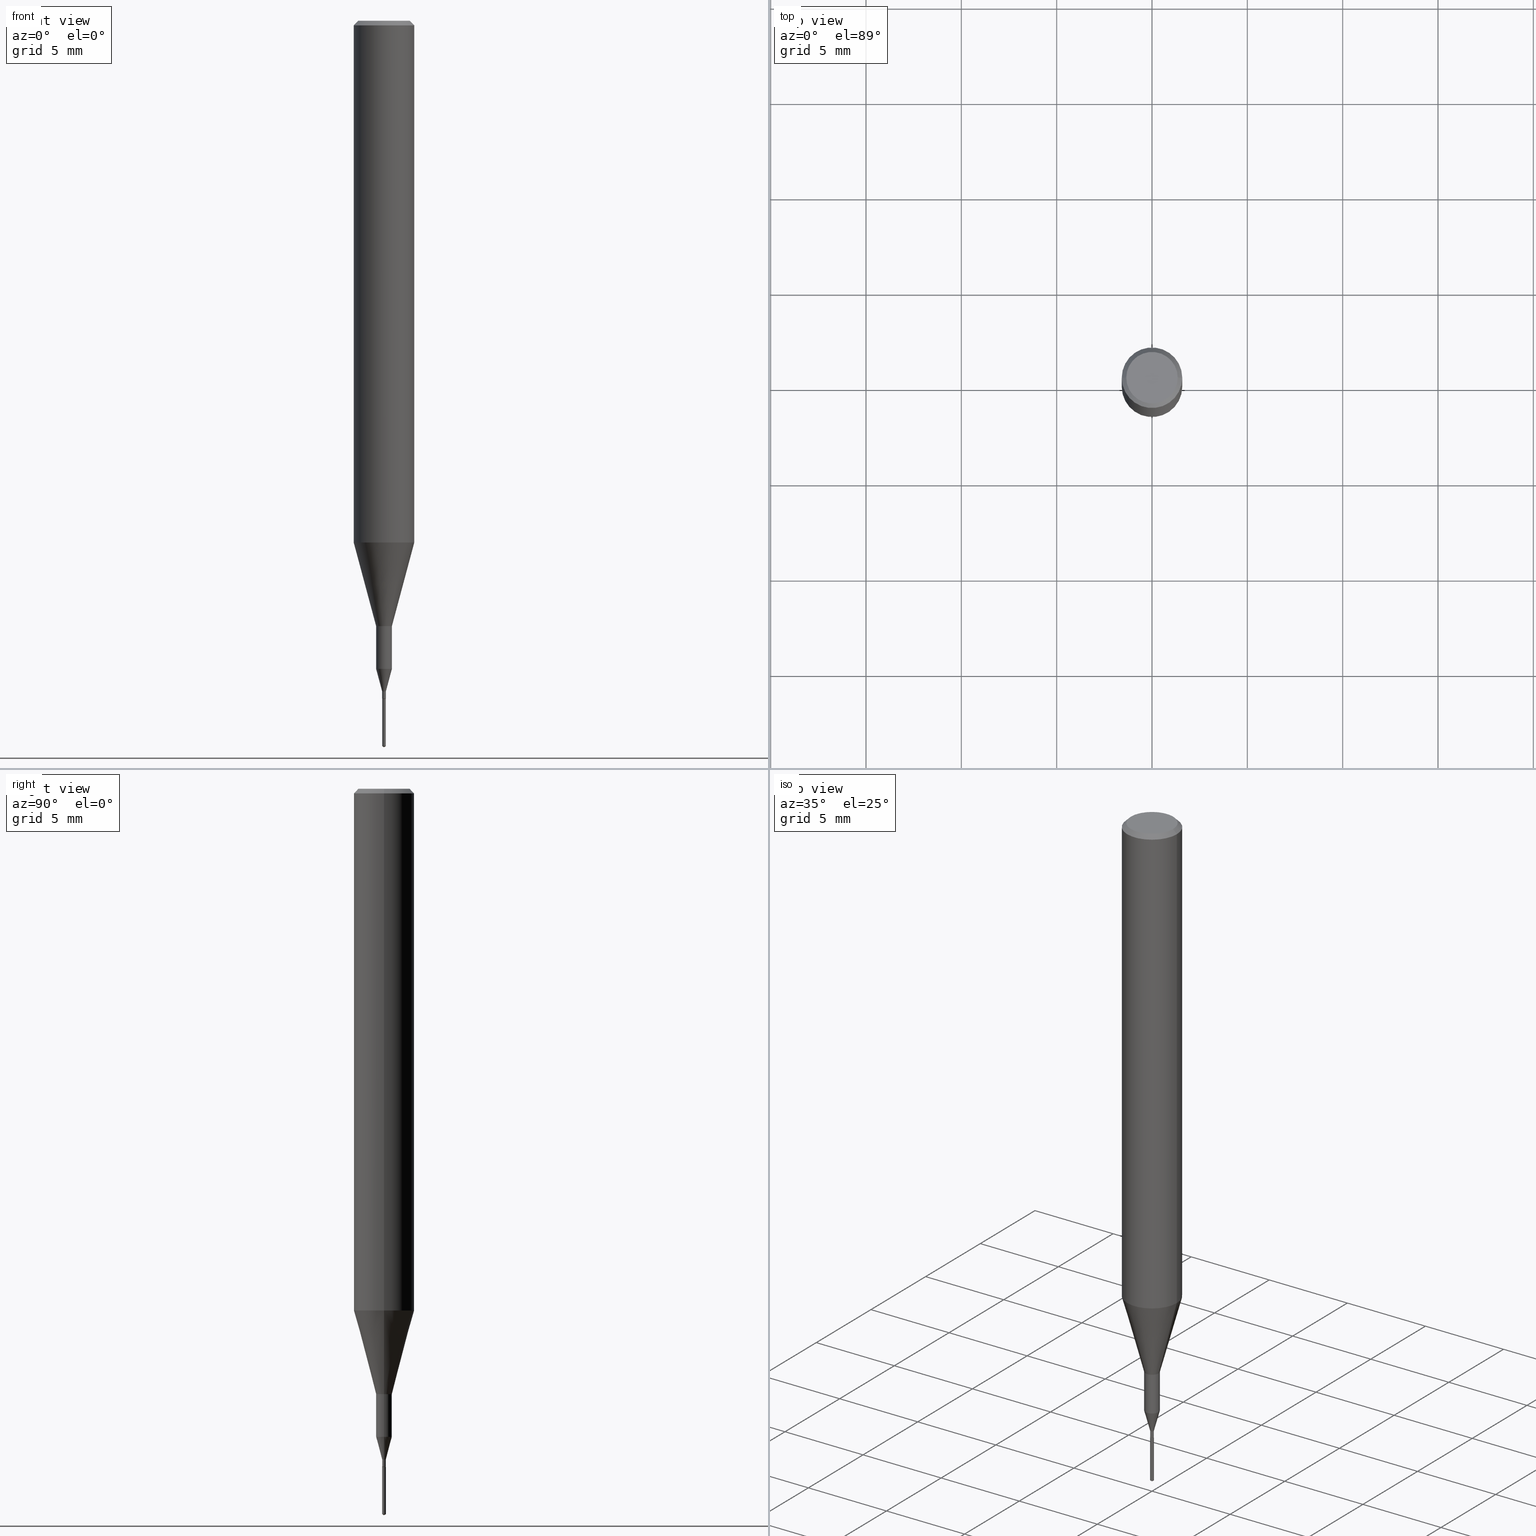
[diagram: canonical four-view strip — front | top / right | iso, engineering-drawing reading convention]
A machine part, canonical four-view strip (front | top / right | iso — engineering-drawing reading convention). The complete STEP part file that produces these views, byte-faithful:
ISO-10303-21;
HEADER;
FILE_DESCRIPTION (( 'STEP AP203' ),
    '1' );
FILE_NAME ('07244.STEP',
    '2024-04-19T13:30:17',
    ( '' ),
    ( '' ),
    'SwSTEP 2.0',
    'SolidWorks 2023',
    '' );
FILE_SCHEMA (( 'CONFIG_CONTROL_DESIGN' ));
ENDSEC;

DATA;
#1 = CARTESIAN_POINT ( 'NONE',  ( 2.634730117954813298E-29, -3.761696332605275695E-15, -1.077392650149939346 ) ) ;
#2 = EDGE_LOOP ( 'NONE', ( #553, #140, #500, #526 ) ) ;
#3 = CARTESIAN_POINT ( 'NONE',  ( 0.003750000000000005933, -4.912514243752306680E-15, -1.399500000000000188 ) ) ;
#4 = DIRECTION ( 'NONE',  ( -2.445468806185136597E-29, 3.491481338843145583E-15, 1.000000000000000000 ) ) ;
#5 = CIRCLE ( 'NONE', #491, 0.003750000000000005933 ) ;
#6 = AXIS2_PLACEMENT_3D ( 'NONE', #267, #35, #221 ) ;
#7 = ORIENTED_EDGE ( 'NONE', *, *, #198, .F. ) ;
#8 = EDGE_CURVE ( 'NONE', #571, #187, #199, .T. ) ;
#9 = DESIGN_CONTEXT ( 'detailed design', #441, 'design' ) ;
#10 = ORIENTED_EDGE ( 'NONE', *, *, #151, .T. ) ;
#11 = CARTESIAN_POINT ( 'NONE',  ( -2.618611004128685449E-17, -0.003750000000005227017, -1.497746772678646865 ) ) ;
#12 = EDGE_CURVE ( 'NONE', #282, #559, #17, .T. ) ;
#13 = ORIENTED_EDGE ( 'NONE', *, *, #114, .F. ) ;
#14 = DIRECTION ( 'NONE',  ( 1.000000000000000000, -6.982962677686266711E-15, 0.000000000000000000 ) ) ;
#15 = DIRECTION ( 'NONE',  ( 1.000000000000000000, -6.982962677686266711E-15, 4.875930095424100059E-29 ) ) ;
#16 = AXIS2_PLACEMENT_3D ( 'NONE', #403, #186, #369 ) ;
#17 = CIRCLE ( 'NONE', #92, 0.06250000000000012490 ) ;
#18 = FACE_OUTER_BOUND ( 'NONE', #333, .T. ) ;
#19 =( GEOMETRIC_REPRESENTATION_CONTEXT ( 3 ) GLOBAL_UNCERTAINTY_ASSIGNED_CONTEXT ( ( #30 ) ) GLOBAL_UNIT_ASSIGNED_CONTEXT ( ( #229, #132, #398 ) ) REPRESENTATION_CONTEXT ( 'NONE', 'WORKASPACE' ) );
#20 = EDGE_LOOP ( 'NONE', ( #133, #345, #22, #68 ) ) ;
#21 = PLANE ( 'NONE',  #285 ) ;
#22 = ORIENTED_EDGE ( 'NONE', *, *, #290, .F. ) ;
#23 = PERSON_AND_ORGANIZATION ( #167, #118 ) ;
#24 = EDGE_LOOP ( 'NONE', ( #461, #426, #519, #204 ) ) ;
#25 = PRODUCT ( '07244', '07244', '', ( #508 ) ) ;
#26 = EDGE_CURVE ( 'NONE', #385, #110, #428, .T. ) ;
#27 = ORIENTED_EDGE ( 'NONE', *, *, #532, .T. ) ;
#28 = DIRECTION ( 'NONE',  ( 2.445468806185136597E-29, -3.491481338843145583E-15, -1.000000000000000000 ) ) ;
#29 = CC_DESIGN_PERSON_AND_ORGANIZATION_ASSIGNMENT ( #576, #170, ( #484 ) ) ;
#30 = UNCERTAINTY_MEASURE_WITH_UNIT (LENGTH_MEASURE( 1.000000000000000082E-05 ), #229, 'distance_accuracy_value', 'NONE');
#31 = CARTESIAN_POINT ( 'NONE',  ( 0.003250000000000000284, -4.910768503082885176E-15, -1.400000000000000355 ) ) ;
#32 = EDGE_CURVE ( 'NONE', #343, #286, #312, .T. ) ;
#33 = LOCAL_TIME ( 9, 30, 17.00000000000000000, #406 ) ;
#34 = AXIS2_PLACEMENT_3D ( 'NONE', #490, #219, #97 ) ;
#35 = DIRECTION ( 'NONE',  ( -2.445468806185136597E-29, 3.491481338843145583E-15, 1.000000000000000000 ) ) ;
#36 = CARTESIAN_POINT ( 'NONE',  ( -0.01624999999999999709, -4.403123558425820763E-15, -1.250000000000000000 ) ) ;
#37 = CARTESIAN_POINT ( 'NONE',  ( 3.422433594256099443E-29, -4.886328133710982549E-15, -1.399500000000000188 ) ) ;
#38 = VECTOR ( 'NONE', #230, 39.37007874015748143 ) ;
#39 = CARTESIAN_POINT ( 'NONE',  ( 0.01625000000000000056, -4.786294975932144680E-15, -1.338349364905389249 ) ) ;
#40 = LINE ( 'NONE', #227, #38 ) ;
#41 = APPROVAL_STATUS ( 'not_yet_approved' ) ;
#42 = LENGTH_MEASURE_WITH_UNIT ( LENGTH_MEASURE( 0.02539999999999999897 ), #588 );
#43 = DIRECTION ( 'NONE',  ( -2.445468806185136597E-29, 3.491481338843145583E-15, 1.000000000000000000 ) ) ;
#44 = EDGE_CURVE ( 'NONE', #238, #115, #5, .T. ) ;
#45 = FACE_OUTER_BOUND ( 'NONE', #74, .T. ) ;
#46 = VECTOR ( 'NONE', #542, 39.37007874015748854 ) ;
#47 = EDGE_CURVE ( 'NONE', #571, #110, #355, .T. ) ;
#48 = DIRECTION ( 'NONE',  ( -6.982962677686265133E-15, -1.000000000000000000, 3.468864327941532683E-15 ) ) ;
#49 = AXIS2_PLACEMENT_3D ( 'NONE', #87, #125, #272 ) ;
#50 = EDGE_LOOP ( 'NONE', ( #149, #589, #193, #378 ) ) ;
#51 = CYLINDRICAL_SURFACE ( 'NONE', #73, 0.01624999999999999709 ) ;
#52 = CC_DESIGN_SECURITY_CLASSIFICATION ( #577, ( #484 ) ) ;
#53 = DIRECTION ( 'NONE',  ( -2.445468806185136597E-29, 3.491481338843145583E-15, 1.000000000000000000 ) ) ;
#54 = ORIENTED_EDGE ( 'NONE', *, *, #449, .F. ) ;
#55 = VECTOR ( 'NONE', #70, 39.37007874015748143 ) ;
#56 = DIRECTION ( 'NONE',  ( 0.7071067811865453523, -7.319954787623248157E-15, -0.7071067811865496822 ) ) ;
#57 = EDGE_CURVE ( 'NONE', #105, #573, #138, .T. ) ;
#58 = CC_DESIGN_APPROVAL ( #304, ( #577 ) ) ;
#59 = CARTESIAN_POINT ( 'NONE',  ( -0.003250000000000000284, -4.864981235468201762E-15, -1.400000000000000355 ) ) ;
#60 = CARTESIAN_POINT ( 'NONE',  ( 0.000000000000000000, 0.000000000000000000, 0.000000000000000000 ) ) ;
#61 = ORIENTED_EDGE ( 'NONE', *, *, #527, .T. ) ;
#62 = CIRCLE ( 'NONE', #148, 0.01624999999999999709 ) ;
#63 = LINE ( 'NONE', #245, #55 ) ;
#64 = ORIENTED_EDGE ( 'NONE', *, *, #472, .F. ) ;
#65 = AXIS2_PLACEMENT_3D ( 'NONE', #413, #232, #548 ) ;
#66 = ORIENTED_EDGE ( 'NONE', *, *, #57, .F. ) ;
#67 = CARTESIAN_POINT ( 'NONE',  ( 3.423656328659192244E-29, -4.888073874380404841E-15, -1.400000000000000355 ) ) ;
#68 = ORIENTED_EDGE ( 'NONE', *, *, #493, .F. ) ;
#69 = VECTOR ( 'NONE', #266, 39.37007874015748143 ) ;
#70 = DIRECTION ( 'NONE',  ( -2.452008562004351188E-29, 3.482116036290244915E-15, 1.000000000000000000 ) ) ;
#71 = ORIENTED_EDGE ( 'NONE', *, *, #198, .T. ) ;
#72 = CARTESIAN_POINT ( 'NONE',  ( 0.06250000000000000000, -4.691678049070464390E-16, -0.009375000000000067307 ) ) ;
#73 = AXIS2_PLACEMENT_3D ( 'NONE', #357, #85, #501 ) ;
#74 = EDGE_LOOP ( 'NONE', ( #247, #71, #380, #113 ) ) ;
#75 = EDGE_CURVE ( 'NONE', #473, #481, #421, .T. ) ;
#76 = ORIENTED_EDGE ( 'NONE', *, *, #57, .T. ) ;
#77 = COORDINATED_UNIVERSAL_TIME_OFFSET ( 5, 0, .BEHIND. ) ;
#78 = VERTEX_POINT ( 'NONE', #31 ) ;
#79 = CIRCLE ( 'NONE', #455, 0.003749999999999998994 ) ;
#80 = CARTESIAN_POINT ( 'NONE',  ( 3.423656328659191123E-29, -4.888073874380404052E-15, -1.400000000000000133 ) ) ;
#81 = AXIS2_PLACEMENT_3D ( 'NONE', #106, #103, #155 ) ;
#82 = DIRECTION ( 'NONE',  ( -2.445468806185136597E-29, 3.491481338843145583E-15, 1.000000000000000000 ) ) ;
#83 = DIRECTION ( 'NONE',  ( 1.000000000000000000, -6.982962677686258033E-15, 0.000000000000000000 ) ) ;
#84 = DIRECTION ( 'NONE',  ( 1.000000000000000000, -6.982962677686264344E-15, 0.000000000000000000 ) ) ;
#85 = DIRECTION ( 'NONE',  ( -2.445468806185136597E-29, 3.491481338843145583E-15, 1.000000000000000000 ) ) ;
#86 = DIRECTION ( 'NONE',  ( -2.445468806185136877E-29, 3.491481338843145188E-15, 1.000000000000000000 ) ) ;
#87 = CARTESIAN_POINT ( 'NONE',  ( 0.000000000000000000, 0.000000000000000000, 0.000000000000000000 ) ) ;
#88 = ADVANCED_FACE ( 'NONE', ( #359 ), #315, .T. ) ;
#89 = VECTOR ( 'NONE', #366, 39.37007874015747433 ) ;
#90 = FACE_OUTER_BOUND ( 'NONE', #166, .T. ) ;
#91 = PERSON_AND_ORGANIZATION_ROLE ( 'classification_officer' ) ;
#92 = AXIS2_PLACEMENT_3D ( 'NONE', #200, #156, #340 ) ;
#93 = CARTESIAN_POINT ( 'NONE',  ( 3.386974296566414366E-29, -4.835701654297756579E-15, -1.385000000000000009 ) ) ;
#94 = ORIENTED_EDGE ( 'NONE', *, *, #75, .T. ) ;
#95 = CARTESIAN_POINT ( 'NONE',  ( 0.003750000000000130833, -4.861887764339080710E-15, -1.385000000000000009 ) ) ;
#96 = AXIS2_PLACEMENT_3D ( 'NONE', #546, #458, #411 ) ;
#97 = DIRECTION ( 'NONE',  ( -6.982962677686265922E-15, -1.000000000000000000, 0.000000000000000000 ) ) ;
#98 = FACE_OUTER_BOUND ( 'NONE', #569, .T. ) ;
#99 = EDGE_CURVE ( 'NONE', #504, #389, #213, .T. ) ;
#100 = ORIENTED_EDGE ( 'NONE', *, *, #47, .F. ) ;
#101 = DIRECTION ( 'NONE',  ( -2.445468806185136597E-29, 3.491481338843145583E-15, 1.000000000000000000 ) ) ;
#102 = ORIENTED_EDGE ( 'NONE', *, *, #32, .T. ) ;
#103 = DIRECTION ( 'NONE',  ( -2.445468806185136597E-29, 3.491481338843145583E-15, 1.000000000000000000 ) ) ;
#104 = COORDINATED_UNIVERSAL_TIME_OFFSET ( 5, 0, .BEHIND. ) ;
#105 = VERTEX_POINT ( 'NONE', #502 ) ;
#106 = CARTESIAN_POINT ( 'NONE',  ( 3.423656328659192244E-29, -4.888073874380404841E-15, -1.400000000000000355 ) ) ;
#107 = EDGE_LOOP ( 'NONE', ( #119, #253, #370, #373 ) ) ;
#108 = DIRECTION ( 'NONE',  ( -2.452008562004351188E-29, 3.482116036290244915E-15, 1.000000000000000000 ) ) ;
#109 = ORIENTED_EDGE ( 'NONE', *, *, #44, .T. ) ;
#110 = VERTEX_POINT ( 'NONE', #547 ) ;
#111 = CARTESIAN_POINT ( 'NONE',  ( 0.01624999999999999709, -4.477824817066334148E-15, -1.250000000000000000 ) ) ;
#112 = ADVANCED_FACE ( 'NONE', ( #350 ), #438, .T. ) ;
#113 = ORIENTED_EDGE ( 'NONE', *, *, #555, .F. ) ;
#114 = EDGE_CURVE ( 'NONE', #389, #504, #62, .T. ) ;
#115 = VERTEX_POINT ( 'NONE', #135 ) ;
#116 = VECTOR ( 'NONE', #139, 39.37007874015747433 ) ;
#117 = PRODUCT_RELATED_PRODUCT_CATEGORY ( 'detail', '', ( #25 ) ) ;
#118 = ORGANIZATION ( 'UNSPECIFIED', 'UNSPECIFIED', '' ) ;
#119 = ORIENTED_EDGE ( 'NONE', *, *, #517, .F. ) ;
#120 = DIRECTION ( 'NONE',  ( 1.000000000000000000, -6.982962677686266711E-15, 4.876176775795935793E-29 ) ) ;
#121 = PERSON_AND_ORGANIZATION ( #167, #118 ) ;
#122 = LINE ( 'NONE', #488, #482 ) ;
#123 = FACE_OUTER_BOUND ( 'NONE', #288, .T. ) ;
#124 = DIRECTION ( 'NONE',  ( -6.982962677686265133E-15, -1.000000000000000000, 3.468864327941532683E-15 ) ) ;
#125 = DIRECTION ( 'NONE',  ( -2.445468806185136597E-29, 3.491481338843145583E-15, 1.000000000000000000 ) ) ;
#126 = VECTOR ( 'NONE', #581, 39.37007874015748143 ) ;
#127 = VECTOR ( 'NONE', #56, 39.37007874015748143 ) ;
#128 = EDGE_CURVE ( 'NONE', #238, #293, #402, .T. ) ;
#129 = APPROVAL_STATUS ( 'not_yet_approved' ) ;
#130 = DATE_AND_TIME ( #543, #218 ) ;
#131 = FACE_OUTER_BOUND ( 'NONE', #306, .T. ) ;
#132 =( NAMED_UNIT ( * ) PLANE_ANGLE_UNIT ( ) SI_UNIT ( $, .RADIAN. ) );
#133 = ORIENTED_EDGE ( 'NONE', *, *, #114, .T. ) ;
#134 = CARTESIAN_POINT ( 'NONE',  ( 2.664535259104037947E-17, 0.003749999999994770537, -1.497746772678646865 ) ) ;
#135 = CARTESIAN_POINT ( 'NONE',  ( -0.003750000000000005933, -4.859682781119978571E-15, -1.399500000000000188 ) ) ;
#136 = AXIS2_PLACEMENT_3D ( 'NONE', #497, #180, #48 ) ;
#137 = EDGE_CURVE ( 'NONE', #115, #238, #429, .T. ) ;
#138 = CIRCLE ( 'NONE', #549, 0.003749999999999999861 ) ;
#139 = DIRECTION ( 'NONE',  ( 0.2588190451025214611, 1.565188264969621573E-15, 0.9659258262890682012 ) ) ;
#140 = ORIENTED_EDGE ( 'NONE', *, *, #511, .T. ) ;
#141 = DIRECTION ( 'NONE',  ( -6.982962677686265922E-15, -1.000000000000000000, 0.000000000000000000 ) ) ;
#142 = CARTESIAN_POINT ( 'NONE',  ( -0.003750000000000130833, -4.834369541413365586E-15, -1.385000000000000009 ) ) ;
#143 = LOCAL_TIME ( 9, 30, 17.00000000000000000, #77 ) ;
#144 = VECTOR ( 'NONE', #205, 39.37007874015748143 ) ;
#145 = VERTEX_POINT ( 'NONE', #142 ) ;
#146 = CARTESIAN_POINT ( 'NONE',  ( 3.678012843006527062E-29, -5.223174054435368162E-15, -1.500000000000000222 ) ) ;
#147 = ORIENTED_EDGE ( 'NONE', *, *, #311, .F. ) ;
#148 = AXIS2_PLACEMENT_3D ( 'NONE', #283, #447, #371 ) ;
#149 = ORIENTED_EDGE ( 'NONE', *, *, #314, .F. ) ;
#150 = CYLINDRICAL_SURFACE ( 'NONE', #209, 0.003749999999999999428 ) ;
#151 = EDGE_CURVE ( 'NONE', #293, #481, #122, .T. ) ;
#152 = CIRCLE ( 'NONE', #572, 0.01625000000000000056 ) ;
#153 = ADVANCED_FACE ( 'NONE', ( #331 ), #561, .T. ) ;
#154 = ORIENTED_EDGE ( 'NONE', *, *, #268, .F. ) ;
#155 = DIRECTION ( 'NONE',  ( 1.000000000000000000, -6.982962677686257244E-15, 0.000000000000000000 ) ) ;
#156 = DIRECTION ( 'NONE',  ( -2.445468806185136597E-29, 3.491481338843145583E-15, 1.000000000000000000 ) ) ;
#157 = CARTESIAN_POINT ( 'NONE',  ( 3.423656328659191123E-29, -4.888073874380404052E-15, -1.400000000000000133 ) ) ;
#158 = AXIS2_PLACEMENT_3D ( 'NONE', #255, #334, #258 ) ;
#159 = ADVANCED_FACE ( 'NONE', ( #169 ), #269, .T. ) ;
#160 = ORIENTED_EDGE ( 'NONE', *, *, #179, .F. ) ;
#161 = AXIS2_PLACEMENT_3D ( 'NONE', #443, #4, #507 ) ;
#162 = AXIS2_PLACEMENT_3D ( 'NONE', #225, #396, #120 ) ;
#163 = ORIENTED_EDGE ( 'NONE', *, *, #555, .T. ) ;
#164 = CC_DESIGN_PERSON_AND_ORGANIZATION_ASSIGNMENT ( #234, #412, ( #25 ) ) ;
#165 = DATE_AND_TIME ( #523, #143 ) ;
#166 = EDGE_LOOP ( 'NONE', ( #391, #308 ) ) ;
#167 = PERSON ( 'UNSPECIFIED', 'UNSPECIFIED', 'UNSPECIFIED', ('UNSPECIFIED'), ('UNSPECIFIED'), ('UNSPECIFIED') ) ;
#168 = CONICAL_SURFACE ( 'NONE', #249, 0.06250000000000012490, 0.2617993877991501295 ) ;
#169 = FACE_OUTER_BOUND ( 'NONE', #107, .T. ) ;
#170 = PERSON_AND_ORGANIZATION_ROLE ( 'design_supplier' ) ;
#171 = CONICAL_SURFACE ( 'NONE', #390, 0.01625000000000000056, 0.2617993877991479090 ) ;
#172 = LINE ( 'NONE', #173, #342 ) ;
#173 = CARTESIAN_POINT ( 'NONE',  ( 0.06250000000000006939, -4.364351673553921624E-16, 3.047610484872463374E-30 ) ) ;
#174 = CARTESIAN_POINT ( 'NONE',  ( -0.06250000000000012490, -3.317607122755211895E-15, -1.077392650149939346 ) ) ;
#175 = ADVANCED_FACE ( 'NONE', ( #528 ), #404, .T. ) ;
#176 = CARTESIAN_POINT ( 'NONE',  ( -0.06250000000000000000, 4.037025298037369491E-16, -0.009375000000000067307 ) ) ;
#177 = CARTESIAN_POINT ( 'NONE',  ( 2.664535259104039796E-17, 0.003749999999995111844, -1.400000000000000133 ) ) ;
#178 = DIRECTION ( 'NONE',  ( -0.2588190451025192962, 5.211531920934537631E-15, 0.9659258262890687563 ) ) ;
#179 = EDGE_CURVE ( 'NONE', #559, #385, #172, .T. ) ;
#180 = DIRECTION ( 'NONE',  ( -2.452008562004351188E-29, 3.482116036290244915E-15, 1.000000000000000000 ) ) ;
#181 = CARTESIAN_POINT ( 'NONE',  ( 2.634730117954813298E-29, -3.761696332605275695E-15, -1.077392650149939346 ) ) ;
#182 = AXIS2_PLACEMENT_3D ( 'NONE', #181, #326, #239 ) ;
#183 = CARTESIAN_POINT ( 'NONE',  ( 7.076796394983739835E-47, -1.010378970665454992E-32, -2.893840386385196200E-18 ) ) ;
#184 = ORIENTED_EDGE ( 'NONE', *, *, #268, .T. ) ;
#185 = FACE_OUTER_BOUND ( 'NONE', #469, .T. ) ;
#186 = DIRECTION ( 'NONE',  ( 2.445468806185136597E-29, -3.491481338843145583E-15, -1.000000000000000000 ) ) ;
#187 = VERTEX_POINT ( 'NONE', #270 ) ;
#188 = DIRECTION ( 'NONE',  ( 1.000000000000000000, -6.982962677686385829E-15, 0.000000000000000000 ) ) ;
#189 = APPLICATION_PROTOCOL_DEFINITION ( 'international standard', 'config_control_design', 1994, #441 ) ;
#190 = CLOSED_SHELL ( 'NONE', ( #566, #415, #505, #478, #246, #195, #263, #407, #388, #309, #112, #292, #159, #175, #153, #580 ) ) ;
#191 = ORIENTED_EDGE ( 'NONE', *, *, #472, .T. ) ;
#192 = CYLINDRICAL_SURFACE ( 'NONE', #384, 0.06250000000000006939 ) ;
#193 = ORIENTED_EDGE ( 'NONE', *, *, #179, .T. ) ;
#194 = CARTESIAN_POINT ( 'NONE',  ( 3.272891623653818470E-29, -4.672821832419743003E-15, -1.338349364905389249 ) ) ;
#195 = ADVANCED_FACE ( 'NONE', ( #123 ), #422, .T. ) ;
#196 = ORIENTED_EDGE ( 'NONE', *, *, #449, .T. ) ;
#197 = PLANE ( 'NONE',  #158 ) ;
#198 = EDGE_CURVE ( 'NONE', #480, #115, #465, .T. ) ;
#199 = CIRCLE ( 'NONE', #220, 0.05312499999999999861 ) ;
#200 = CARTESIAN_POINT ( 'NONE',  ( 2.634730117954813298E-29, -3.761696332605275695E-15, -1.077392650149939346 ) ) ;
#201 = CYLINDRICAL_SURFACE ( 'NONE', #487, 0.01624999999999999709 ) ;
#202 = AXIS2_PLACEMENT_3D ( 'NONE', #584, #277, #141 ) ;
#203 = CONICAL_SURFACE ( 'NONE', #400, 65.52281426576959689, 1.029744258676662305 ) ;
#204 = ORIENTED_EDGE ( 'NONE', *, *, #532, .F. ) ;
#205 = DIRECTION ( 'NONE',  ( -2.452008562004351188E-29, 3.482116036290244915E-15, 1.000000000000000000 ) ) ;
#206 = CIRCLE ( 'NONE', #531, 0.06250000000000000000 ) ;
#207 = EDGE_CURVE ( 'NONE', #343, #437, #587, .T. ) ;
#208 = ORIENTED_EDGE ( 'NONE', *, *, #75, .F. ) ;
#209 = AXIS2_PLACEMENT_3D ( 'NONE', #157, #341, #520 ) ;
#210 = APPROVAL_STATUS ( 'not_yet_approved' ) ;
#211 = SHAPE_DEFINITION_REPRESENTATION ( #439, #409 ) ;
#212 = ORIENTED_EDGE ( 'NONE', *, *, #99, .F. ) ;
#213 = CIRCLE ( 'NONE', #242, 0.01624999999999999709 ) ;
#214 = VECTOR ( 'NONE', #178, 39.37007874015748854 ) ;
#215 = ORIENTED_EDGE ( 'NONE', *, *, #224, .T. ) ;
#216 = DIRECTION ( 'NONE',  ( 1.000000000000000000, -6.982962677686385829E-15, 0.000000000000000000 ) ) ;
#217 = CALENDAR_DATE ( 2024, 19, 4 ) ;
#218 = LOCAL_TIME ( 9, 30, 17.00000000000000000, #585 ) ;
#219 = DIRECTION ( 'NONE',  ( -2.452008562004351188E-29, 3.482116036290244915E-15, 1.000000000000000000 ) ) ;
#220 = AXIS2_PLACEMENT_3D ( 'NONE', #567, #483, #15 ) ;
#221 = DIRECTION ( 'NONE',  ( 1.000000000000000000, -6.982962677686264344E-15, 0.000000000000000000 ) ) ;
#222 = CARTESIAN_POINT ( 'NONE',  ( -0.003750000000000068383, 2.664535259100424286E-17, -1.844600658845623133E-31 ) ) ;
#223 = LOCAL_TIME ( 9, 30, 17.00000000000000000, #104 ) ;
#224 = EDGE_CURVE ( 'NONE', #573, #105, #320, .T. ) ;
#225 = CARTESIAN_POINT ( 'NONE',  ( 0.000000000000000000, 0.000000000000000000, 0.000000000000000000 ) ) ;
#226 = CARTESIAN_POINT ( 'NONE',  ( -0.01624999999999999709, 1.154631945610162595E-16, -7.993269521664220284E-31 ) ) ;
#227 = CARTESIAN_POINT ( 'NONE',  ( -0.06250000000000006939, 4.440892098500631092E-16, -3.074334431409319267E-30 ) ) ;
#228 = APPROVAL_ROLE ( '' ) ;
#229 =( CONVERSION_BASED_UNIT ( 'INCH', #42 ) LENGTH_UNIT ( ) NAMED_UNIT ( #344 ) );
#230 = DIRECTION ( 'NONE',  ( -2.445468806185136877E-29, 3.491481338843145188E-15, 1.000000000000000000 ) ) ;
#231 = DATE_TIME_ROLE ( 'classification_date' ) ;
#232 = DIRECTION ( 'NONE',  ( -2.452008562004351188E-29, 3.482116036290244915E-15, 1.000000000000000000 ) ) ;
#233 = LINE ( 'NONE', #590, #214 ) ;
#234 = PERSON_AND_ORGANIZATION ( #167, #118 ) ;
#235 = CARTESIAN_POINT ( 'NONE',  ( 0.06250000000000012490, -4.198131499960668153E-15, -1.077392650149939346 ) ) ;
#236 = ORIENTED_EDGE ( 'NONE', *, *, #207, .F. ) ;
#237 = DIRECTION ( 'NONE',  ( -2.445468806185136597E-29, 3.491481338843145583E-15, 1.000000000000000000 ) ) ;
#238 = VERTEX_POINT ( 'NONE', #3 ) ;
#239 = DIRECTION ( 'NONE',  ( 1.000000000000000000, -6.982962677686264344E-15, 0.000000000000000000 ) ) ;
#240 = CARTESIAN_POINT ( 'NONE',  ( 0.000000000000000000, 0.000000000000000000, 0.000000000000000000 ) ) ;
#241 = MANIFOLD_SOLID_BREP ( 'Body-Move/Copy2[1]', #453 ) ;
#242 = AXIS2_PLACEMENT_3D ( 'NONE', #583, #82, #552 ) ;
#243 = ORIENTED_EDGE ( 'NONE', *, *, #32, .F. ) ;
#244 = VECTOR ( 'NONE', #361, 39.37007874015748143 ) ;
#245 = CARTESIAN_POINT ( 'NONE',  ( 2.664535259103798823E-17, 0.003749999999995111410, -1.400000000000000133 ) ) ;
#246 = ADVANCED_FACE ( 'NONE', ( #185 ), #171, .T. ) ;
#247 = ORIENTED_EDGE ( 'NONE', *, *, #457, .T. ) ;
#248 = VECTOR ( 'NONE', #499, 39.37007874015748143 ) ;
#249 = AXIS2_PLACEMENT_3D ( 'NONE', #1, #329, #84 ) ;
#250 = ORIENTED_EDGE ( 'NONE', *, *, #151, .F. ) ;
#251 = CC_DESIGN_PERSON_AND_ORGANIZATION_ASSIGNMENT ( #121, #91, ( #577 ) ) ;
#252 = DIRECTION ( 'NONE',  ( 1.000000000000000000, -6.982962677686153903E-15, 0.000000000000000000 ) ) ;
#253 = ORIENTED_EDGE ( 'NONE', *, *, #99, .T. ) ;
#254 = EDGE_CURVE ( 'NONE', #187, #385, #462, .T. ) ;
#255 = CARTESIAN_POINT ( 'NONE',  ( -7.875157325047164519E-28, -1.225676797553025319E-13, -1.400000000000000355 ) ) ;
#256 = ORIENTED_EDGE ( 'NONE', *, *, #436, .F. ) ;
#257 = APPROVAL_PERSON_ORGANIZATION ( #23, #464, #386 ) ;
#258 = DIRECTION ( 'NONE',  ( 1.000000000000000000, -6.982962677686265922E-15, 4.876176775795935793E-29 ) ) ;
#259 = CC_DESIGN_DATE_AND_TIME_ASSIGNMENT ( #291, #435, ( #273 ) ) ;
#260 = ORIENTED_EDGE ( 'NONE', *, *, #511, .F. ) ;
#261 = PERSON_AND_ORGANIZATION_ROLE ( 'creator' ) ;
#262 = ORIENTED_EDGE ( 'NONE', *, *, #8, .F. ) ;
#263 = ADVANCED_FACE ( 'NONE', ( #45 ), #541, .T. ) ;
#264 = CARTESIAN_POINT ( 'NONE',  ( 2.292627005798582375E-31, -3.273263755165472650E-17, -0.009375000000000067307 ) ) ;
#265 = CIRCLE ( 'NONE', #354, 0.003750000000000130833 ) ;
#266 = DIRECTION ( 'NONE',  ( 6.090539988449809201E-15, 0.8571673007021181068, 0.5150380749100444966 ) ) ;
#267 = CARTESIAN_POINT ( 'NONE',  ( 2.634730117954813298E-29, -3.761696332605275695E-15, -1.077392650149939346 ) ) ;
#268 = EDGE_CURVE ( 'NONE', #145, #473, #233, .T. ) ;
#269 = CONICAL_SURFACE ( 'NONE', #6, 0.06250000000000012490, 0.2617993877991501295 ) ;
#270 = CARTESIAN_POINT ( 'NONE',  ( 0.05312499999999999861, -4.129888592719939842E-16, -5.787680772767651417E-18 ) ) ;
#271 = PLANE ( 'NONE',  #471 ) ;
#272 = DIRECTION ( 'NONE',  ( 1.000000000000000000, -6.982962677686265922E-15, 4.876176775795935232E-29 ) ) ;
#273 = PRODUCT_DEFINITION ( 'UNKNOWN', '', #484, #9 ) ;
#274 = CARTESIAN_POINT ( 'NONE',  ( -0.003250000000000000284, -4.862332008294090561E-15, -1.400000000000000355 ) ) ;
#275 = CARTESIAN_POINT ( 'NONE',  ( 1.415359278996747967E-46, -2.020757941330909984E-32, -5.787680772770392401E-18 ) ) ;
#276 = DIRECTION ( 'NONE',  ( 2.438088387897960049E-29, -3.491481338843145188E-15, -1.000000000000000000 ) ) ;
#277 = DIRECTION ( 'NONE',  ( -2.452008562004351188E-29, 3.482116036290244915E-15, 1.000000000000000000 ) ) ;
#278 = CONICAL_SURFACE ( 'NONE', #16, 0.06250000000000000000, 0.7853981633974452814 ) ;
#279 = CALENDAR_DATE ( 2024, 19, 4 ) ;
#280 = DIRECTION ( 'NONE',  ( 0.000000000000000000, 0.000000000000000000, 1.000000000000000000 ) ) ;
#281 = LINE ( 'NONE', #222, #347 ) ;
#282 = VERTEX_POINT ( 'NONE', #536 ) ;
#283 = CARTESIAN_POINT ( 'NONE',  ( 3.056836007731421306E-29, -4.364351673553932471E-15, -1.250000000000000000 ) ) ;
#284 = PERSON_AND_ORGANIZATION ( #167, #118 ) ;
#285 = AXIS2_PLACEMENT_3D ( 'NONE', #379, #516, #434 ) ;
#286 = VERTEX_POINT ( 'NONE', #134 ) ;
#287 = DIRECTION ( 'NONE',  ( 1.000000000000000000, -6.982962677686265922E-15, 4.876176775795935232E-29 ) ) ;
#288 = EDGE_LOOP ( 'NONE', ( #109, #310, #64, #433 ) ) ;
#289 = DIRECTION ( 'NONE',  ( 1.000000000000000000, -6.982962677686266711E-15, 4.876176775795935793E-29 ) ) ;
#290 = EDGE_CURVE ( 'NONE', #559, #282, #294, .T. ) ;
#291 = DATE_AND_TIME ( #217, #223 ) ;
#292 = ADVANCED_FACE ( 'NONE', ( #420 ), #51, .T. ) ;
#293 = VERTEX_POINT ( 'NONE', #95 ) ;
#294 = CIRCLE ( 'NONE', #182, 0.06250000000000012490 ) ;
#295 = CC_DESIGN_PERSON_AND_ORGANIZATION_ASSIGNMENT ( #351, #395, ( #484 ) ) ;
#296 = ORIENTED_EDGE ( 'NONE', *, *, #533, .T. ) ;
#297 = DIRECTION ( 'NONE',  ( -2.445468806185136597E-29, 3.491481338843145583E-15, 1.000000000000000000 ) ) ;
#298 = EDGE_LOOP ( 'NONE', ( #243, #475, #260 ) ) ;
#299 = CC_DESIGN_APPROVAL ( #399, ( #273 ) ) ;
#300 = APPROVAL_PERSON_ORGANIZATION ( #284, #304, #460 ) ;
#301 = AXIS2_PLACEMENT_3D ( 'NONE', #353, #442, #83 ) ;
#302 = ORIENTED_EDGE ( 'NONE', *, *, #332, .F. ) ;
#303 = FACE_OUTER_BOUND ( 'NONE', #545, .T. ) ;
#304 = APPROVAL ( #129, 'UNSPECIFIED' ) ;
#305 = AXIS2_PLACEMENT_3D ( 'NONE', #337, #297, #252 ) ;
#306 = EDGE_LOOP ( 'NONE', ( #147, #375, #440, #100 ) ) ;
#307 = CIRCLE ( 'NONE', #313, 0.05312499999999999861 ) ;
#308 = ORIENTED_EDGE ( 'NONE', *, *, #311, .T. ) ;
#309 = ADVANCED_FACE ( 'NONE', ( #540 ), #318, .T. ) ;
#310 = ORIENTED_EDGE ( 'NONE', *, *, #518, .T. ) ;
#311 = EDGE_CURVE ( 'NONE', #187, #571, #307, .T. ) ;
#312 = LINE ( 'NONE', #417, #69 ) ;
#313 = AXIS2_PLACEMENT_3D ( 'NONE', #275, #43, #448 ) ;
#314 = EDGE_CURVE ( 'NONE', #282, #110, #40, .T. ) ;
#315 = CYLINDRICAL_SURFACE ( 'NONE', #34, 0.003749999999999999428 ) ;
#316 = DIRECTION ( 'NONE',  ( -0.7071067811865453523, 2.468850131082234184E-15, -0.7071067811865496822 ) ) ;
#317 = LINE ( 'NONE', #494, #116 ) ;
#318 = CYLINDRICAL_SURFACE ( 'NONE', #49, 0.003750000000000068383 ) ;
#319 = DIRECTION ( 'NONE',  ( 1.000000000000000000, 0.000000000000000000, 0.000000000000000000 ) ) ;
#320 = CIRCLE ( 'NONE', #202, 0.003749999999999999861 ) ;
#321 = DIRECTION ( 'NONE',  ( -2.445468806185136597E-29, 3.491481338843145583E-15, 1.000000000000000000 ) ) ;
#322 = CARTESIAN_POINT ( 'NONE',  ( -0.05312499999999999861, 3.873362110279099094E-16, -5.787680772773044021E-18 ) ) ;
#323 = CARTESIAN_POINT ( 'NONE',  ( 0.003250000000000000284, -4.910768503082885176E-15, -1.400000000000000355 ) ) ;
#324 = LOCAL_TIME ( 9, 30, 17.00000000000000000, #358 ) ;
#325 = ORIENTED_EDGE ( 'NONE', *, *, #436, .T. ) ;
#326 = DIRECTION ( 'NONE',  ( -2.445468806185136597E-29, 3.491481338843145583E-15, 1.000000000000000000 ) ) ;
#327 = AXIS2_PLACEMENT_3D ( 'NONE', #37, #53, #188 ) ;
#328 = DIRECTION ( 'NONE',  ( -6.982962677686265922E-15, -1.000000000000000000, 0.000000000000000000 ) ) ;
#329 = DIRECTION ( 'NONE',  ( -2.445468806185136597E-29, 3.491481338843145583E-15, 1.000000000000000000 ) ) ;
#330 = ORIENTED_EDGE ( 'NONE', *, *, #372, .T. ) ;
#331 = FACE_OUTER_BOUND ( 'NONE', #430, .T. ) ;
#332 = EDGE_CURVE ( 'NONE', #437, #105, #365, .T. ) ;
#333 = EDGE_LOOP ( 'NONE', ( #196, #61, #13, #513 ) ) ;
#334 = DIRECTION ( 'NONE',  ( -2.438088387897960049E-29, 3.491481338843145188E-15, 1.000000000000000000 ) ) ;
#335 = EDGE_LOOP ( 'NONE', ( #564, #557, #466, #160 ) ) ;
#336 = ORIENTED_EDGE ( 'NONE', *, *, #457, .F. ) ;
#337 = CARTESIAN_POINT ( 'NONE',  ( 3.386974296566414366E-29, -4.835701654297756579E-15, -1.385000000000000009 ) ) ;
#338 = EDGE_LOOP ( 'NONE', ( #7, #330, #163, #521 ) ) ;
#339 = CARTESIAN_POINT ( 'NONE',  ( 0.000000000000000000, 0.000000000000000000, 0.000000000000000000 ) ) ;
#340 = DIRECTION ( 'NONE',  ( 1.000000000000000000, -6.982962677686264344E-15, 0.000000000000000000 ) ) ;
#341 = DIRECTION ( 'NONE',  ( -2.452008562004351188E-29, 3.482116036290244915E-15, 1.000000000000000000 ) ) ;
#342 = VECTOR ( 'NONE', #534, 39.37007874015748143 ) ;
#343 = VERTEX_POINT ( 'NONE', #146 ) ;
#344 = DIMENSIONAL_EXPONENTS ( 1.000000000000000000, 0.000000000000000000, 0.000000000000000000, 0.000000000000000000, 0.000000000000000000, 0.000000000000000000, 0.000000000000000000 ) ;
#345 = ORIENTED_EDGE ( 'NONE', *, *, #517, .T. ) ;
#346 = ADVANCED_FACE ( 'NONE', ( #432 ), #21, .F. ) ;
#347 = VECTOR ( 'NONE', #86, 39.37007874015748143 ) ;
#348 = ORIENTED_EDGE ( 'NONE', *, *, #527, .F. ) ;
#349 = APPROVAL_DATE_TIME ( #130, #399 ) ;
#350 = FACE_OUTER_BOUND ( 'NONE', #515, .T. ) ;
#351 = PERSON_AND_ORGANIZATION ( #167, #118 ) ;
#352 = EDGE_CURVE ( 'NONE', #110, #385, #206, .T. ) ;
#353 = CARTESIAN_POINT ( 'NONE',  ( 3.272891623653818470E-29, -4.672821832419743003E-15, -1.338349364905389249 ) ) ;
#354 = AXIS2_PLACEMENT_3D ( 'NONE', #93, #586, #582 ) ;
#355 = LINE ( 'NONE', #176, #397 ) ;
#356 = LINE ( 'NONE', #323, #392 ) ;
#357 = CARTESIAN_POINT ( 'NONE',  ( 0.000000000000000000, 0.000000000000000000, 0.000000000000000000 ) ) ;
#358 = COORDINATED_UNIVERSAL_TIME_OFFSET ( 5, 0, .BEHIND. ) ;
#359 = FACE_OUTER_BOUND ( 'NONE', #367, .T. ) ;
#360 = LINE ( 'NONE', #174, #89 ) ;
#361 = DIRECTION ( 'NONE',  ( -5.985567269335970467E-15, -0.8571673007021145541, 0.5150380749100504918 ) ) ;
#362 = APPLICATION_PROTOCOL_DEFINITION ( 'international standard', 'config_control_design', 1994, #401 ) ;
#363 = FACE_OUTER_BOUND ( 'NONE', #298, .T. ) ;
#364 = ADVANCED_FACE ( 'NONE', ( #568 ), #150, .T. ) ;
#365 = LINE ( 'NONE', #479, #144 ) ;
#366 = DIRECTION ( 'NONE',  ( -0.2588190451025214611, 5.211531920934551042E-15, 0.9659258262890682012 ) ) ;
#367 = EDGE_LOOP ( 'NONE', ( #325, #509, #66, #302 ) ) ;
#368 = CARTESIAN_POINT ( 'NONE',  ( 3.659701526712726431E-29, -5.249396901583489399E-15, -1.500000000000000222 ) ) ;
#369 = DIRECTION ( 'NONE',  ( -1.000000000000000000, 6.982962677686266711E-15, 0.000000000000000000 ) ) ;
#370 = ORIENTED_EDGE ( 'NONE', *, *, #493, .T. ) ;
#371 = DIRECTION ( 'NONE',  ( 1.000000000000000000, -6.982962677686288799E-15, 0.000000000000000000 ) ) ;
#372 = EDGE_CURVE ( 'NONE', #480, #78, #463, .T. ) ;
#373 = ORIENTED_EDGE ( 'NONE', *, *, #12, .F. ) ;
#374 = DIRECTION ( 'NONE',  ( -2.445468806185136597E-29, 3.491481338843145583E-15, 1.000000000000000000 ) ) ;
#375 = ORIENTED_EDGE ( 'NONE', *, *, #254, .T. ) ;
#376 = CARTESIAN_POINT ( 'NONE',  ( 3.423656328659192244E-29, -4.888073874380404841E-15, -1.400000000000000355 ) ) ;
#377 = CIRCLE ( 'NONE', #65, 0.003749999999999998994 ) ;
#378 = ORIENTED_EDGE ( 'NONE', *, *, #352, .F. ) ;
#379 = CARTESIAN_POINT ( 'NONE',  ( 3.423656328659191123E-29, -4.888073874380404052E-15, -1.400000000000000133 ) ) ;
#380 = ORIENTED_EDGE ( 'NONE', *, *, #44, .F. ) ;
#381 = DIRECTION ( 'NONE',  ( 1.000000000000000000, -6.982962677686258033E-15, 0.000000000000000000 ) ) ;
#382 = ORIENTED_EDGE ( 'NONE', *, *, #372, .F. ) ;
#383 = CARTESIAN_POINT ( 'NONE',  ( 2.292627005798582375E-31, -3.273263755165472650E-17, -0.009375000000000067307 ) ) ;
#384 = AXIS2_PLACEMENT_3D ( 'NONE', #510, #374, #289 ) ;
#385 = VERTEX_POINT ( 'NONE', #72 ) ;
#386 = APPROVAL_ROLE ( '' ) ;
#387 = MANIFOLD_SOLID_BREP ( 'Body-Move/Copy2[2]', #190 ) ;
#388 = ADVANCED_FACE ( 'NONE', ( #474 ), #489, .T. ) ;
#389 = VERTEX_POINT ( 'NONE', #111 ) ;
#390 = AXIS2_PLACEMENT_3D ( 'NONE', #495, #452, #506 ) ;
#391 = ORIENTED_EDGE ( 'NONE', *, *, #8, .T. ) ;
#392 = VECTOR ( 'NONE', #451, 39.37007874015748854 ) ;
#393 = DIRECTION ( 'NONE',  ( 1.000000000000000000, -6.982962677686266711E-15, 0.000000000000000000 ) ) ;
#394 = APPROVAL_PERSON_ORGANIZATION ( #450, #399, #228 ) ;
#395 = PERSON_AND_ORGANIZATION_ROLE ( 'creator' ) ;
#396 = DIRECTION ( 'NONE',  ( -2.445468806185136597E-29, 3.491481338843145583E-15, 1.000000000000000000 ) ) ;
#397 = VECTOR ( 'NONE', #316, 39.37007874015748143 ) ;
#398 =( NAMED_UNIT ( * ) SI_UNIT ( $, .STERADIAN. ) SOLID_ANGLE_UNIT ( ) );
#399 = APPROVAL ( #41, 'UNSPECIFIED' ) ;
#400 = AXIS2_PLACEMENT_3D ( 'NONE', #446, #535, #124 ) ;
#401 = APPLICATION_CONTEXT ( 'configuration controlled 3d designs of mechanical parts and assemblies' ) ;
#402 = LINE ( 'NONE', #459, #126 ) ;
#403 = CARTESIAN_POINT ( 'NONE',  ( 2.292627005798582375E-31, -3.273263755165472650E-17, -0.009375000000000067307 ) ) ;
#404 = CYLINDRICAL_SURFACE ( 'NONE', #162, 0.06250000000000006939 ) ;
#405 = LINE ( 'NONE', #503, #486 ) ;
#406 = COORDINATED_UNIVERSAL_TIME_OFFSET ( 5, 0, .BEHIND. ) ;
#407 = ADVANCED_FACE ( 'NONE', ( #303 ), #197, .F. ) ;
#408 = CONICAL_SURFACE ( 'NONE', #136, 65.52281426576959689, 1.029744258676662305 ) ;
#409 = ADVANCED_BREP_SHAPE_REPRESENTATION ( '07244', ( #241, #387, #431 ), #19 ) ;
#410 = DIRECTION ( 'NONE',  ( -2.445468806185136877E-29, 3.491481338843145188E-15, 1.000000000000000000 ) ) ;
#411 = DIRECTION ( 'NONE',  ( 1.000000000000000000, -6.982962677686257244E-15, 0.000000000000000000 ) ) ;
#412 = PERSON_AND_ORGANIZATION_ROLE ( 'design_owner' ) ;
#413 = CARTESIAN_POINT ( 'NONE',  ( 3.663332252175526096E-29, -5.228439479020337613E-15, -1.497746772678646865 ) ) ;
#414 = ORIENTED_EDGE ( 'NONE', *, *, #254, .F. ) ;
#415 = ADVANCED_FACE ( 'NONE', ( #476 ), #192, .T. ) ;
#416 = AXIS2_PLACEMENT_3D ( 'NONE', #67, #467, #554 ) ;
#417 = CARTESIAN_POINT ( 'NONE',  ( 3.678173411635649529E-29, -5.223174054435366584E-15, -1.500000000000000222 ) ) ;
#418 = CALENDAR_DATE ( 2024, 19, 4 ) ;
#419 = EDGE_LOOP ( 'NONE', ( #76, #215 ) ) ;
#420 = FACE_OUTER_BOUND ( 'NONE', #524, .T. ) ;
#421 = CIRCLE ( 'NONE', #161, 0.01625000000000000056 ) ;
#422 = CYLINDRICAL_SURFACE ( 'NONE', #570, 0.003750000000000068383 ) ;
#423 = ORIENTED_EDGE ( 'NONE', *, *, #47, .T. ) ;
#424 = CARTESIAN_POINT ( 'NONE',  ( 3.663332252175526096E-29, -5.228439479020337613E-15, -1.497746772678646865 ) ) ;
#425 = EDGE_CURVE ( 'NONE', #286, #573, #63, .T. ) ;
#426 = ORIENTED_EDGE ( 'NONE', *, *, #137, .T. ) ;
#427 = CARTESIAN_POINT ( 'NONE',  ( -0.01625000000000000056, -4.557358637858726818E-15, -1.338349364905389249 ) ) ;
#428 = CIRCLE ( 'NONE', #578, 0.06250000000000000000 ) ;
#429 = CIRCLE ( 'NONE', #327, 0.003750000000000005933 ) ;
#430 = EDGE_LOOP ( 'NONE', ( #414, #262, #423, #550 ) ) ;
#431 = AXIS2_PLACEMENT_3D ( 'NONE', #60, #280, #319 ) ;
#432 = FACE_OUTER_BOUND ( 'NONE', #419, .T. ) ;
#433 = ORIENTED_EDGE ( 'NONE', *, *, #128, .F. ) ;
#434 = DIRECTION ( 'NONE',  ( 6.982962677686265922E-15, 1.000000000000000000, -3.482116036290244915E-15 ) ) ;
#435 = DATE_TIME_ROLE ( 'creation_date' ) ;
#436 = EDGE_CURVE ( 'NONE', #437, #286, #79, .T. ) ;
#437 = VERTEX_POINT ( 'NONE', #11 ) ;
#438 = CONICAL_SURFACE ( 'NONE', #301, 0.01625000000000000056, 0.2617993877991479090 ) ;
#439 = PRODUCT_DEFINITION_SHAPE ( 'NONE', 'NONE',  #273 ) ;
#440 = ORIENTED_EDGE ( 'NONE', *, *, #26, .T. ) ;
#441 = APPLICATION_CONTEXT ( 'configuration controlled 3d designs of mechanical parts and assemblies' ) ;
#442 = DIRECTION ( 'NONE',  ( -2.445468806185136597E-29, 3.491481338843145583E-15, 1.000000000000000000 ) ) ;
#443 = CARTESIAN_POINT ( 'NONE',  ( 3.272891623653818470E-29, -4.672821832419743003E-15, -1.338349364905389249 ) ) ;
#444 = DIRECTION ( 'NONE',  ( -2.452008562004351188E-29, 3.482116036290244915E-15, 1.000000000000000000 ) ) ;
#445 = AXIS2_PLACEMENT_3D ( 'NONE', #264, #28, #575 ) ;
#446 = CARTESIAN_POINT ( 'NONE',  ( -9.286691297279199858E-28, 1.318548970531025661E-13, 37.87007874015748143 ) ) ;
#447 = DIRECTION ( 'NONE',  ( -2.445468806185136597E-29, 3.491481338843145583E-15, 1.000000000000000000 ) ) ;
#448 = DIRECTION ( 'NONE',  ( 1.000000000000000000, -6.982962677686266711E-15, 4.875930095424100059E-29 ) ) ;
#449 = EDGE_CURVE ( 'NONE', #481, #473, #152, .T. ) ;
#450 = PERSON_AND_ORGANIZATION ( #167, #118 ) ;
#451 = DIRECTION ( 'NONE',  ( 0.7071067811864297781, -2.468850131081024071E-15, 0.7071067811866651454 ) ) ;
#452 = DIRECTION ( 'NONE',  ( -2.445468806185136597E-29, 3.491481338843145583E-15, 1.000000000000000000 ) ) ;
#453 = CLOSED_SHELL ( 'NONE', ( #88, #574, #556, #364, #346 ) ) ;
#454 = DATE_AND_TIME ( #418, #33 ) ;
#455 = AXIS2_PLACEMENT_3D ( 'NONE', #424, #108, #560 ) ;
#456 = FACE_OUTER_BOUND ( 'NONE', #20, .T. ) ;
#457 = EDGE_CURVE ( 'NONE', #78, #480, #468, .T. ) ;
#458 = DIRECTION ( 'NONE',  ( -2.445468806185136597E-29, 3.491481338843145583E-15, 1.000000000000000000 ) ) ;
#459 = CARTESIAN_POINT ( 'NONE',  ( 0.003750000000000068383, -2.618611004132397410E-17, 1.828566290923509159E-31 ) ) ;
#460 = APPROVAL_ROLE ( '' ) ;
#461 = ORIENTED_EDGE ( 'NONE', *, *, #518, .F. ) ;
#462 = LINE ( 'NONE', #498, #127 ) ;
#463 = CIRCLE ( 'NONE', #81, 0.003250000000000000284 ) ;
#464 = APPROVAL ( #210, 'UNSPECIFIED' ) ;
#465 = LINE ( 'NONE', #59, #46 ) ;
#466 = ORIENTED_EDGE ( 'NONE', *, *, #26, .F. ) ;
#467 = DIRECTION ( 'NONE',  ( -2.445468806185136597E-29, 3.491481338843145583E-15, 1.000000000000000000 ) ) ;
#468 = CIRCLE ( 'NONE', #551, 0.003250000000000000284 ) ;
#469 = EDGE_LOOP ( 'NONE', ( #191, #184, #54, #250 ) ) ;
#470 = DIRECTION ( 'NONE',  ( -2.445468806185136597E-29, 3.491481338843145583E-15, 1.000000000000000000 ) ) ;
#471 = AXIS2_PLACEMENT_3D ( 'NONE', #183, #276, #539 ) ;
#472 = EDGE_CURVE ( 'NONE', #293, #145, #563, .T. ) ;
#473 = VERTEX_POINT ( 'NONE', #427 ) ;
#474 = FACE_OUTER_BOUND ( 'NONE', #338, .T. ) ;
#475 = ORIENTED_EDGE ( 'NONE', *, *, #207, .T. ) ;
#476 = FACE_OUTER_BOUND ( 'NONE', #335, .T. ) ;
#477 = CARTESIAN_POINT ( 'NONE',  ( 2.292627005798582375E-31, -3.273263755165472650E-17, -0.009375000000000067307 ) ) ;
#478 = ADVANCED_FACE ( 'NONE', ( #18 ), #201, .T. ) ;
#479 = CARTESIAN_POINT ( 'NONE',  ( -2.618611004128925497E-17, -0.003750000000004887445, -1.400000000000000133 ) ) ;
#480 = VERTEX_POINT ( 'NONE', #274 ) ;
#481 = VERTEX_POINT ( 'NONE', #39 ) ;
#482 = VECTOR ( 'NONE', #579, 39.37007874015748854 ) ;
#483 = DIRECTION ( 'NONE',  ( -2.445468806185136597E-29, 3.491481338843145583E-15, 1.000000000000000000 ) ) ;
#484 = PRODUCT_DEFINITION_FORMATION_WITH_SPECIFIED_SOURCE ( 'ANY', '', #25, .NOT_KNOWN. ) ;
#485 = DIRECTION ( 'NONE',  ( -2.445468806185136597E-29, 3.491481338843145583E-15, 1.000000000000000000 ) ) ;
#486 = VECTOR ( 'NONE', #410, 39.37007874015748143 ) ;
#487 = AXIS2_PLACEMENT_3D ( 'NONE', #339, #321, #544 ) ;
#488 = CARTESIAN_POINT ( 'NONE',  ( 0.01625000000000000056, -4.786294975932144680E-15, -1.338349364905389249 ) ) ;
#489 = CONICAL_SURFACE ( 'NONE', #416, 0.003250000000000000284, 0.7853981633972818566 ) ;
#490 = CARTESIAN_POINT ( 'NONE',  ( 3.423656328659191123E-29, -4.888073874380404052E-15, -1.400000000000000133 ) ) ;
#491 = AXIS2_PLACEMENT_3D ( 'NONE', #530, #485, #216 ) ;
#492 = LINE ( 'NONE', #226, #248 ) ;
#493 = EDGE_CURVE ( 'NONE', #389, #559, #317, .T. ) ;
#494 = CARTESIAN_POINT ( 'NONE',  ( 0.06250000000000012490, -4.198131499960668153E-15, -1.077392650149939346 ) ) ;
#495 = CARTESIAN_POINT ( 'NONE',  ( 3.272891623653818470E-29, -4.672821832419743003E-15, -1.338349364905389249 ) ) ;
#496 = APPROVAL_DATE_TIME ( #454, #304 ) ;
#497 = CARTESIAN_POINT ( 'NONE',  ( -9.286691297279199858E-28, 1.318548970531025661E-13, 37.87007874015748143 ) ) ;
#498 = CARTESIAN_POINT ( 'NONE',  ( 0.06250000000000000000, -4.615137624123754923E-16, -0.009375000000000067307 ) ) ;
#499 = DIRECTION ( 'NONE',  ( -2.445468806185136877E-29, 3.491481338843145188E-15, 1.000000000000000000 ) ) ;
#500 = ORIENTED_EDGE ( 'NONE', *, *, #332, .T. ) ;
#501 = DIRECTION ( 'NONE',  ( 1.000000000000000000, -6.982962677686267499E-15, 4.876176775795936353E-29 ) ) ;
#502 = CARTESIAN_POINT ( 'NONE',  ( -2.618611004128925805E-17, -0.003750000000004887878, -1.400000000000000133 ) ) ;
#503 = CARTESIAN_POINT ( 'NONE',  ( 0.01624999999999999709, -1.134731435124018242E-16, 7.923787260668394963E-31 ) ) ;
#504 = VERTEX_POINT ( 'NONE', #36 ) ;
#505 = ADVANCED_FACE ( 'NONE', ( #456 ), #168, .T. ) ;
#506 = DIRECTION ( 'NONE',  ( 1.000000000000000000, -6.982962677686258033E-15, 0.000000000000000000 ) ) ;
#507 = DIRECTION ( 'NONE',  ( 1.000000000000000000, -6.982962677686258033E-15, 0.000000000000000000 ) ) ;
#508 = MECHANICAL_CONTEXT ( 'NONE', #401, 'mechanical' ) ;
#509 = ORIENTED_EDGE ( 'NONE', *, *, #425, .T. ) ;
#510 = CARTESIAN_POINT ( 'NONE',  ( 0.000000000000000000, 0.000000000000000000, 0.000000000000000000 ) ) ;
#511 = EDGE_CURVE ( 'NONE', #286, #437, #377, .T. ) ;
#512 = PERSON_AND_ORGANIZATION ( #167, #118 ) ;
#513 = ORIENTED_EDGE ( 'NONE', *, *, #533, .F. ) ;
#514 = DIRECTION ( 'NONE',  ( -2.445468806185136597E-29, 3.491481338843145583E-15, 1.000000000000000000 ) ) ;
#515 = EDGE_LOOP ( 'NONE', ( #154, #27, #10, #208 ) ) ;
#516 = DIRECTION ( 'NONE',  ( 2.452008562004350908E-29, -3.482116036290244915E-15, -1.000000000000000000 ) ) ;
#517 = EDGE_CURVE ( 'NONE', #504, #282, #360, .T. ) ;
#518 = EDGE_CURVE ( 'NONE', #115, #145, #281, .T. ) ;
#519 = ORIENTED_EDGE ( 'NONE', *, *, #128, .T. ) ;
#520 = DIRECTION ( 'NONE',  ( -6.982962677686265922E-15, -1.000000000000000000, 0.000000000000000000 ) ) ;
#521 = ORIENTED_EDGE ( 'NONE', *, *, #137, .F. ) ;
#522 = CC_DESIGN_PERSON_AND_ORGANIZATION_ASSIGNMENT ( #512, #261, ( #273 ) ) ;
#523 = CALENDAR_DATE ( 2024, 19, 4 ) ;
#524 = EDGE_LOOP ( 'NONE', ( #348, #94, #296, #212 ) ) ;
#525 = APPROVAL_DATE_TIME ( #165, #464 ) ;
#526 = ORIENTED_EDGE ( 'NONE', *, *, #224, .F. ) ;
#527 = EDGE_CURVE ( 'NONE', #473, #504, #492, .T. ) ;
#528 = FACE_OUTER_BOUND ( 'NONE', #50, .T. ) ;
#529 = SECURITY_CLASSIFICATION_LEVEL ( 'unclassified' ) ;
#530 = CARTESIAN_POINT ( 'NONE',  ( 3.422433594256099443E-29, -4.886328133710982549E-15, -1.399500000000000188 ) ) ;
#531 = AXIS2_PLACEMENT_3D ( 'NONE', #383, #514, #14 ) ;
#532 = EDGE_CURVE ( 'NONE', #145, #293, #265, .T. ) ;
#533 = EDGE_CURVE ( 'NONE', #481, #389, #405, .T. ) ;
#534 = DIRECTION ( 'NONE',  ( -2.445468806185136877E-29, 3.491481338843145188E-15, 1.000000000000000000 ) ) ;
#535 = DIRECTION ( 'NONE',  ( -2.452008562004351188E-29, 3.482116036290244915E-15, 1.000000000000000000 ) ) ;
#536 = CARTESIAN_POINT ( 'NONE',  ( -0.06250000000000012490, -3.317607122755211895E-15, -1.077392650149939346 ) ) ;
#537 = CC_DESIGN_APPROVAL ( #464, ( #484 ) ) ;
#538 = DATE_AND_TIME ( #279, #324 ) ;
#539 = DIRECTION ( 'NONE',  ( -1.000000000000000000, 6.982962677686265922E-15, -4.876176775795935793E-29 ) ) ;
#540 = FACE_OUTER_BOUND ( 'NONE', #24, .T. ) ;
#541 = CONICAL_SURFACE ( 'NONE', #96, 0.003250000000000000284, 0.7853981633972818566 ) ;
#542 = DIRECTION ( 'NONE',  ( -0.7071067811864297781, 7.493145998869928175E-15, 0.7071067811866651454 ) ) ;
#543 = CALENDAR_DATE ( 2024, 19, 4 ) ;
#544 = DIRECTION ( 'NONE',  ( 1.000000000000000000, -6.982962677686267499E-15, 4.876176775795936353E-29 ) ) ;
#545 = EDGE_LOOP ( 'NONE', ( #336, #382 ) ) ;
#546 = CARTESIAN_POINT ( 'NONE',  ( 3.423656328659192244E-29, -4.888073874380404841E-15, -1.400000000000000355 ) ) ;
#547 = CARTESIAN_POINT ( 'NONE',  ( -0.06250000000000000000, -1.453125275228401137E-15, -0.009375000000000067307 ) ) ;
#548 = DIRECTION ( 'NONE',  ( -6.982962677686265922E-15, -1.000000000000000000, 0.000000000000000000 ) ) ;
#549 = AXIS2_PLACEMENT_3D ( 'NONE', #80, #444, #328 ) ;
#550 = ORIENTED_EDGE ( 'NONE', *, *, #352, .T. ) ;
#551 = AXIS2_PLACEMENT_3D ( 'NONE', #376, #558, #565 ) ;
#552 = DIRECTION ( 'NONE',  ( 1.000000000000000000, -6.982962677686288799E-15, 0.000000000000000000 ) ) ;
#553 = ORIENTED_EDGE ( 'NONE', *, *, #425, .F. ) ;
#554 = DIRECTION ( 'NONE',  ( 1.000000000000000000, -6.982962677686257244E-15, 0.000000000000000000 ) ) ;
#555 = EDGE_CURVE ( 'NONE', #78, #238, #356, .T. ) ;
#556 = ADVANCED_FACE ( 'NONE', ( #363 ), #408, .T. ) ;
#557 = ORIENTED_EDGE ( 'NONE', *, *, #314, .T. ) ;
#558 = DIRECTION ( 'NONE',  ( -2.445468806185136597E-29, 3.491481338843145583E-15, 1.000000000000000000 ) ) ;
#559 = VERTEX_POINT ( 'NONE', #235 ) ;
#560 = DIRECTION ( 'NONE',  ( -6.982962677686265922E-15, -1.000000000000000000, 0.000000000000000000 ) ) ;
#561 = CONICAL_SURFACE ( 'NONE', #445, 0.06250000000000000000, 0.7853981633974452814 ) ;
#562 = CC_DESIGN_DATE_AND_TIME_ASSIGNMENT ( #538, #231, ( #577 ) ) ;
#563 = CIRCLE ( 'NONE', #305, 0.003750000000000130833 ) ;
#564 = ORIENTED_EDGE ( 'NONE', *, *, #290, .T. ) ;
#565 = DIRECTION ( 'NONE',  ( 1.000000000000000000, -6.982962677686257244E-15, 0.000000000000000000 ) ) ;
#566 = ADVANCED_FACE ( 'NONE', ( #131 ), #278, .T. ) ;
#567 = CARTESIAN_POINT ( 'NONE',  ( 1.415359278996747967E-46, -2.020757941330909984E-32, -5.787680772770392401E-18 ) ) ;
#568 = FACE_OUTER_BOUND ( 'NONE', #2, .T. ) ;
#569 = EDGE_LOOP ( 'NONE', ( #236, #102, #256 ) ) ;
#570 = AXIS2_PLACEMENT_3D ( 'NONE', #240, #101, #287 ) ;
#571 = VERTEX_POINT ( 'NONE', #322 ) ;
#572 = AXIS2_PLACEMENT_3D ( 'NONE', #194, #470, #381 ) ;
#573 = VERTEX_POINT ( 'NONE', #177 ) ;
#574 = ADVANCED_FACE ( 'NONE', ( #98 ), #203, .T. ) ;
#575 = DIRECTION ( 'NONE',  ( -1.000000000000000000, 6.982962677686266711E-15, 0.000000000000000000 ) ) ;
#576 = PERSON_AND_ORGANIZATION ( #167, #118 ) ;
#577 = SECURITY_CLASSIFICATION ( '', '', #529 ) ;
#578 = AXIS2_PLACEMENT_3D ( 'NONE', #477, #237, #393 ) ;
#579 = DIRECTION ( 'NONE',  ( 0.2588190451025192962, 1.565188264969638337E-15, 0.9659258262890687563 ) ) ;
#580 = ADVANCED_FACE ( 'NONE', ( #90 ), #271, .F. ) ;
#581 = DIRECTION ( 'NONE',  ( -2.445468806185136877E-29, 3.491481338843145188E-15, 1.000000000000000000 ) ) ;
#582 = DIRECTION ( 'NONE',  ( 1.000000000000000000, -6.982962677686153903E-15, 0.000000000000000000 ) ) ;
#583 = CARTESIAN_POINT ( 'NONE',  ( 3.056836007731421306E-29, -4.364351673553932471E-15, -1.250000000000000000 ) ) ;
#584 = CARTESIAN_POINT ( 'NONE',  ( 3.423656328659191123E-29, -4.888073874380404052E-15, -1.400000000000000133 ) ) ;
#585 = COORDINATED_UNIVERSAL_TIME_OFFSET ( 5, 0, .BEHIND. ) ;
#586 = DIRECTION ( 'NONE',  ( -2.445468806185136597E-29, 3.491481338843145583E-15, 1.000000000000000000 ) ) ;
#587 = LINE ( 'NONE', #368, #244 ) ;
#588 =( LENGTH_UNIT ( ) NAMED_UNIT ( * ) SI_UNIT ( $, .METRE. ) );
#589 = ORIENTED_EDGE ( 'NONE', *, *, #12, .T. ) ;
#590 = CARTESIAN_POINT ( 'NONE',  ( -0.01625000000000000056, -4.557358637858726818E-15, -1.338349364905389249 ) ) ;
ENDSEC;
END-ISO-10303-21;
